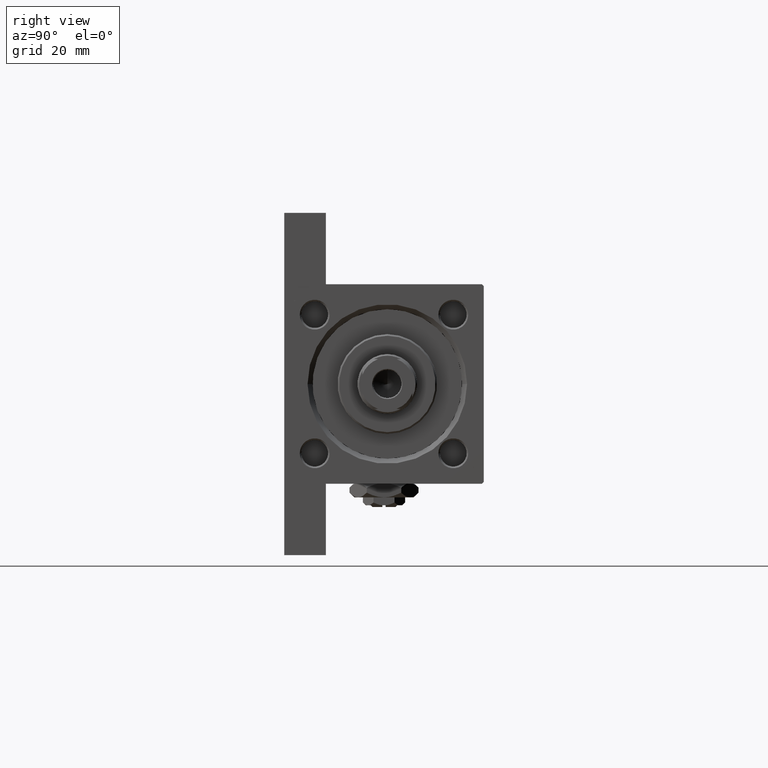
[diagram: clean part render]
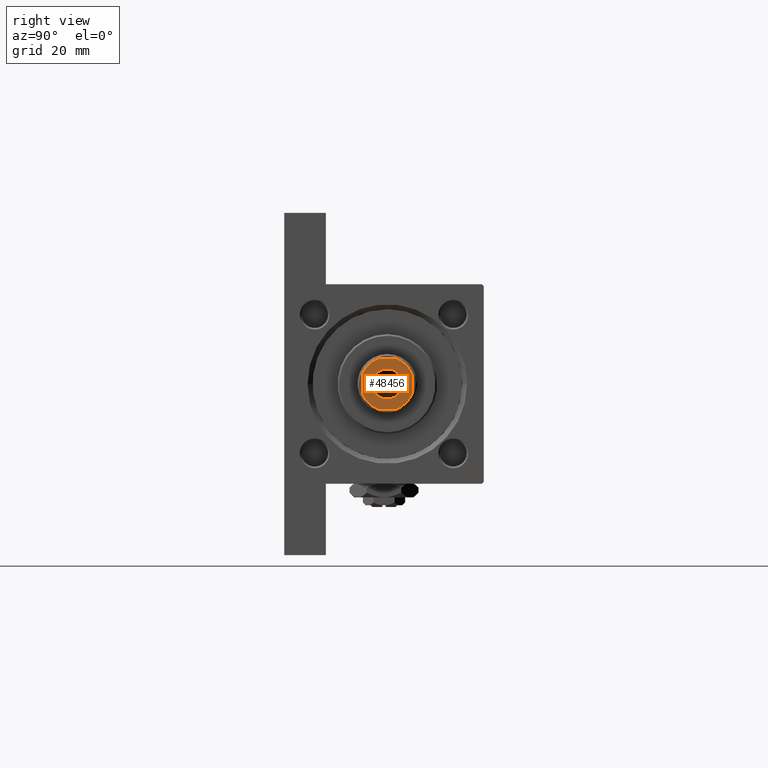
[diagram: same view with one face highlighted and labeled with its STEP entity id]
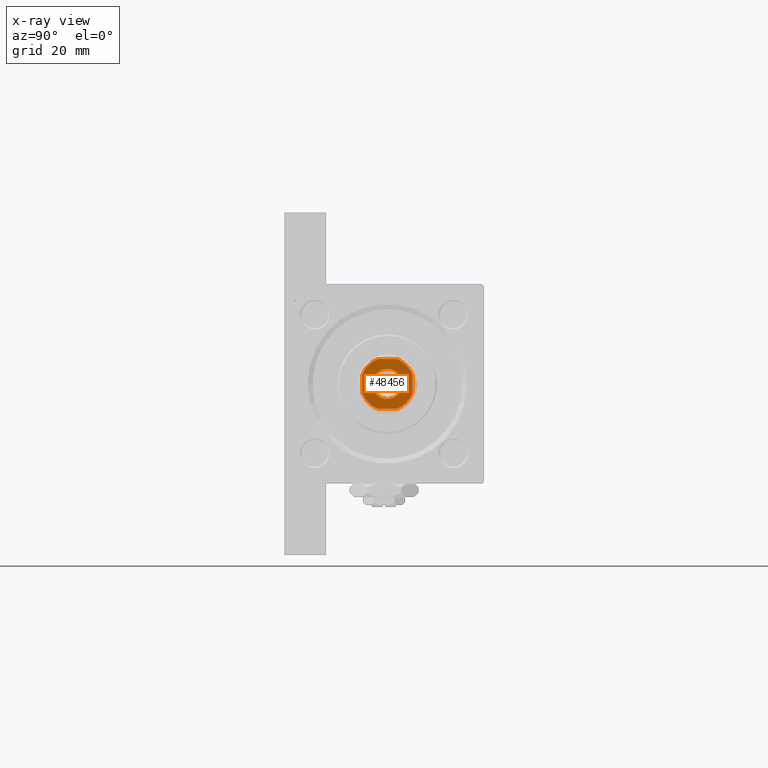
[diagram: x-ray of the same camera — body ghosted, the highlighted face saturated]
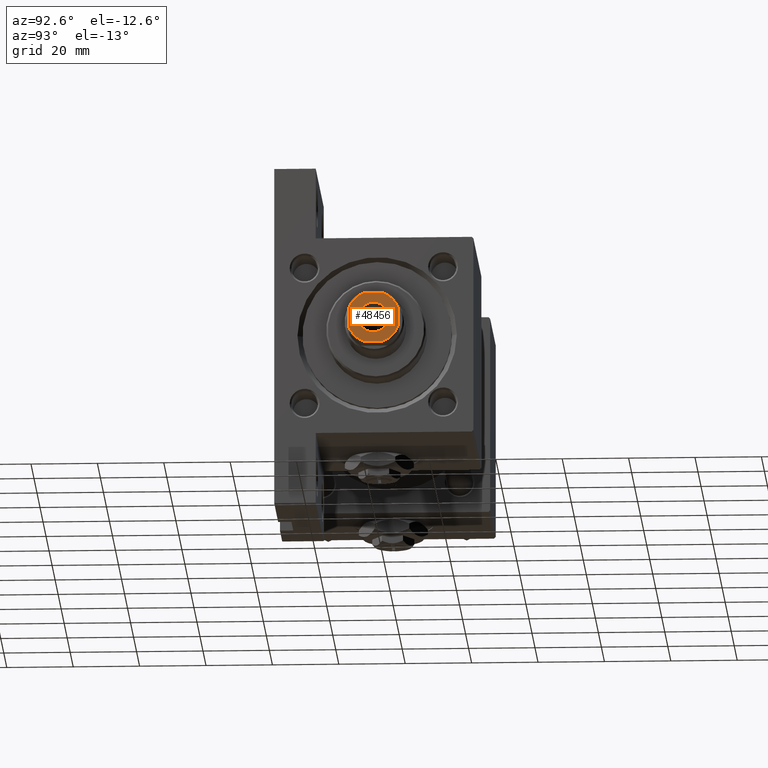
[diagram: same view with one face highlighted and labeled with its STEP entity id]
A machine part, right view. The second image highlights one B-rep face of the part: STEP entity #48456.
The next image is the same camera in x-ray: the body ghosted, the highlighted face saturated — about 0% of this face is hidden behind the body in this view.
A second angle (auxiliary view) of the same face is appended — the face is thin or edge-on in the first view.
In plain terms, the highlighted planar face has unit normal (1, 0, 0).
Its self-contained STEP definition (entity closure, byte-faithful):
#85 = DIRECTION ( 'NONE',  ( -1.000000000000000000, -1.156482317317871478E-16, -0.000000000000000000 ) ) ;
#431 = DIRECTION ( 'NONE',  ( -0.000000000000000000, 0.000000000000000000, 1.000000000000000000 ) ) ;
#775 = DIRECTION ( 'NONE',  ( -0.000000000000000000, 0.000000000000000000, 1.000000000000000000 ) ) ;
#1074 = CARTESIAN_POINT ( 'NONE',  ( -7.500000000000000000, 7.499999999999998224, 136.0000000000000000 ) ) ;
#2207 = CIRCLE ( 'NONE', #3831, 8.000000000000042633 ) ;
#2609 = EDGE_CURVE ( 'NONE', #30984, #36499, #36231, .T. ) ;
#2633 = LINE ( 'NONE', #34451, #50656 ) ;
#3609 = DIRECTION ( 'NONE',  ( 1.000000000000000000, 0.000000000000000000, 0.000000000000000000 ) ) ;
#3831 = AXIS2_PLACEMENT_3D ( 'NONE', #34816, #23004, #29934 ) ;
#3872 = DIRECTION ( 'NONE',  ( 1.000000000000000000, 0.000000000000000000, 0.000000000000000000 ) ) ;
#4553 = CARTESIAN_POINT ( 'NONE',  ( 0.000000000000000000, 0.000000000000000000, 136.0000000000000000 ) ) ;
#4967 = CIRCLE ( 'NONE', #22148, 7.999999999999979572 ) ;
#6842 = CARTESIAN_POINT ( 'NONE',  ( 0.000000000000000000, 0.000000000000000000, 136.0000000000000000 ) ) ;
#7033 = VERTEX_POINT ( 'NONE', #7497 ) ;
#7275 = CARTESIAN_POINT ( 'NONE',  ( -7.500000000000000000, 7.499999999999998224, 136.0000000000000000 ) ) ;
#7497 = CARTESIAN_POINT ( 'NONE',  ( 4.549999999999970512, 0.000000000000000000, 136.0000000000000000 ) ) ;
#8798 = ORIENTED_EDGE ( 'NONE', *, *, #12057, .T. ) ;
#8928 = ORIENTED_EDGE ( 'NONE', *, *, #12361, .T. ) ;
#10038 = CARTESIAN_POINT ( 'NONE',  ( -7.499999999999999112, 2.783882181414961021, 136.0000000000000000 ) ) ;
#10443 = CARTESIAN_POINT ( 'NONE',  ( -7.499999999999997335, -2.783882181414957468, 136.0000000000000000 ) ) ;
#10543 = CIRCLE ( 'NONE', #26118, 4.549999999999970512 ) ;
#10812 = LINE ( 'NONE', #15161, #42492 ) ;
#10943 = DIRECTION ( 'NONE',  ( 0.000000000000000000, -0.000000000000000000, -1.000000000000000000 ) ) ;
#12057 = EDGE_CURVE ( 'NONE', #14899, #45684, #34494, .T. ) ;
#12361 = EDGE_CURVE ( 'NONE', #20511, #20659, #10812, .T. ) ;
#14101 = VERTEX_POINT ( 'NONE', #14179 ) ;
#14179 = CARTESIAN_POINT ( 'NONE',  ( 7.500000000000000888, -2.783882181415129331, 136.0000000000000000 ) ) ;
#14242 = EDGE_LOOP ( 'NONE', ( #15020, #45291 ) ) ;
#14899 = VERTEX_POINT ( 'NONE', #24043 ) ;
#15020 = ORIENTED_EDGE ( 'NONE', *, *, #38450, .T. ) ;
#15161 = CARTESIAN_POINT ( 'NONE',  ( -7.499999999999998224, -7.500000000000000000, 136.0000000000000000 ) ) ;
#15236 = ORIENTED_EDGE ( 'NONE', *, *, #40911, .T. ) ;
#15319 = CIRCLE ( 'NONE', #25107, 4.549999999999970512 ) ;
#16245 = ORIENTED_EDGE ( 'NONE', *, *, #39267, .T. ) ;
#16389 = VERTEX_POINT ( 'NONE', #41838 ) ;
#16723 = DIRECTION ( 'NONE',  ( 1.156482317317871725E-16, -1.000000000000000000, 0.000000000000000000 ) ) ;
#17465 = FACE_BOUND ( 'NONE', #14242, .T. ) ;
#17569 = VERTEX_POINT ( 'NONE', #25410 ) ;
#20511 = VERTEX_POINT ( 'NONE', #24412 ) ;
#20659 = VERTEX_POINT ( 'NONE', #45458 ) ;
#21886 = CARTESIAN_POINT ( 'NONE',  ( -2.783882181414960577, 7.499999999999999112, 136.0000000000000000 ) ) ;
#21959 = DIRECTION ( 'NONE',  ( 1.000000000000000000, 0.000000000000000000, 0.000000000000000000 ) ) ;
#22148 = AXIS2_PLACEMENT_3D ( 'NONE', #27714, #775, #3609 ) ;
#23004 = DIRECTION ( 'NONE',  ( -0.000000000000000000, 0.000000000000000000, 1.000000000000000000 ) ) ;
#23620 = ORIENTED_EDGE ( 'NONE', *, *, #2609, .T. ) ;
#24015 = DIRECTION ( 'NONE',  ( 0.000000000000000000, -0.000000000000000000, -1.000000000000000000 ) ) ;
#24043 = CARTESIAN_POINT ( 'NONE',  ( 2.783882181415129331, 7.499999999999999112, 136.0000000000000000 ) ) ;
#24412 = CARTESIAN_POINT ( 'NONE',  ( -2.783882181414952139, -7.500000000000000000, 136.0000000000000000 ) ) ;
#24511 = CARTESIAN_POINT ( 'NONE',  ( 0.000000000000000000, 0.000000000000000000, 136.0000000000000000 ) ) ;
#24913 = PLANE ( 'NONE',  #34378 ) ;
#25063 = EDGE_CURVE ( 'NONE', #16389, #7033, #10543, .T. ) ;
#25107 = AXIS2_PLACEMENT_3D ( 'NONE', #6842, #10943, #21959 ) ;
#25410 = CARTESIAN_POINT ( 'NONE',  ( 7.500000000000000888, 2.783882181415126222, 136.0000000000000000 ) ) ;
#25814 = CIRCLE ( 'NONE', #37297, 8.000000000000040856 ) ;
#26118 = AXIS2_PLACEMENT_3D ( 'NONE', #24511, #24015, #47403 ) ;
#26220 = AXIS2_PLACEMENT_3D ( 'NONE', #4553, #431, #27891 ) ;
#27714 = CARTESIAN_POINT ( 'NONE',  ( 0.000000000000000000, 0.000000000000000000, 136.0000000000000000 ) ) ;
#27891 = DIRECTION ( 'NONE',  ( 1.000000000000000000, 0.000000000000000000, 0.000000000000000000 ) ) ;
#28831 = VECTOR ( 'NONE', #16723, 1000.000000000000000 ) ;
#29934 = DIRECTION ( 'NONE',  ( 1.000000000000000000, 0.000000000000000000, 0.000000000000000000 ) ) ;
#30907 = EDGE_LOOP ( 'NONE', ( #15236, #37532, #8798, #40964, #23620, #43063, #8928, #16245 ) ) ;
#30984 = VERTEX_POINT ( 'NONE', #10038 ) ;
#31188 = CIRCLE ( 'NONE', #26220, 7.999999999999981348 ) ;
#31225 = EDGE_CURVE ( 'NONE', #36499, #20511, #4967, .T. ) ;
#33137 = FACE_OUTER_BOUND ( 'NONE', #30907, .T. ) ;
#34184 = DIRECTION ( 'NONE',  ( -0.000000000000000000, 0.000000000000000000, 1.000000000000000000 ) ) ;
#34378 = AXIS2_PLACEMENT_3D ( 'NONE', #48810, #48566, #40602 ) ;
#34451 = CARTESIAN_POINT ( 'NONE',  ( 7.500000000000000000, 7.500000000000000000, 136.0000000000000000 ) ) ;
#34494 = LINE ( 'NONE', #7275, #38373 ) ;
#34816 = CARTESIAN_POINT ( 'NONE',  ( 0.000000000000000000, 0.000000000000000000, 136.0000000000000000 ) ) ;
#36058 = EDGE_CURVE ( 'NONE', #17569, #14899, #25814, .T. ) ;
#36231 = LINE ( 'NONE', #1074, #28831 ) ;
#36499 = VERTEX_POINT ( 'NONE', #10443 ) ;
#37297 = AXIS2_PLACEMENT_3D ( 'NONE', #41891, #34184, #46017 ) ;
#37532 = ORIENTED_EDGE ( 'NONE', *, *, #36058, .T. ) ;
#38373 = VECTOR ( 'NONE', #85, 1000.000000000000000 ) ;
#38450 = EDGE_CURVE ( 'NONE', #7033, #16389, #15319, .T. ) ;
#39267 = EDGE_CURVE ( 'NONE', #20659, #14101, #2207, .T. ) ;
#40602 = DIRECTION ( 'NONE',  ( 1.000000000000000000, 0.000000000000000000, 0.000000000000000000 ) ) ;
#40911 = EDGE_CURVE ( 'NONE', #14101, #17569, #2633, .T. ) ;
#40964 = ORIENTED_EDGE ( 'NONE', *, *, #50226, .T. ) ;
#41633 = DIRECTION ( 'NONE',  ( -1.156482317317871478E-16, 1.000000000000000000, -0.000000000000000000 ) ) ;
#41838 = CARTESIAN_POINT ( 'NONE',  ( -4.549999999999970512, 5.572142936120421828E-16, 136.0000000000000000 ) ) ;
#41891 = CARTESIAN_POINT ( 'NONE',  ( 0.000000000000000000, 0.000000000000000000, 136.0000000000000000 ) ) ;
#42492 = VECTOR ( 'NONE', #3872, 1000.000000000000000 ) ;
#43063 = ORIENTED_EDGE ( 'NONE', *, *, #31225, .T. ) ;
#45291 = ORIENTED_EDGE ( 'NONE', *, *, #25063, .T. ) ;
#45458 = CARTESIAN_POINT ( 'NONE',  ( 2.783882181415132440, -7.500000000000000000, 136.0000000000000000 ) ) ;
#45684 = VERTEX_POINT ( 'NONE', #21886 ) ;
#46017 = DIRECTION ( 'NONE',  ( 1.000000000000000000, 0.000000000000000000, 0.000000000000000000 ) ) ;
#47403 = DIRECTION ( 'NONE',  ( 1.000000000000000000, 0.000000000000000000, 0.000000000000000000 ) ) ;
#48456 = ADVANCED_FACE ( 'NONE', ( #17465, #33137 ), #24913, .T. ) ;
#48566 = DIRECTION ( 'NONE',  ( -0.000000000000000000, 0.000000000000000000, 1.000000000000000000 ) ) ;
#48810 = CARTESIAN_POINT ( 'NONE',  ( 0.000000000000000000, 0.000000000000000000, 136.0000000000000000 ) ) ;
#50226 = EDGE_CURVE ( 'NONE', #45684, #30984, #31188, .T. ) ;
#50656 = VECTOR ( 'NONE', #41633, 1000.000000000000000 ) ;